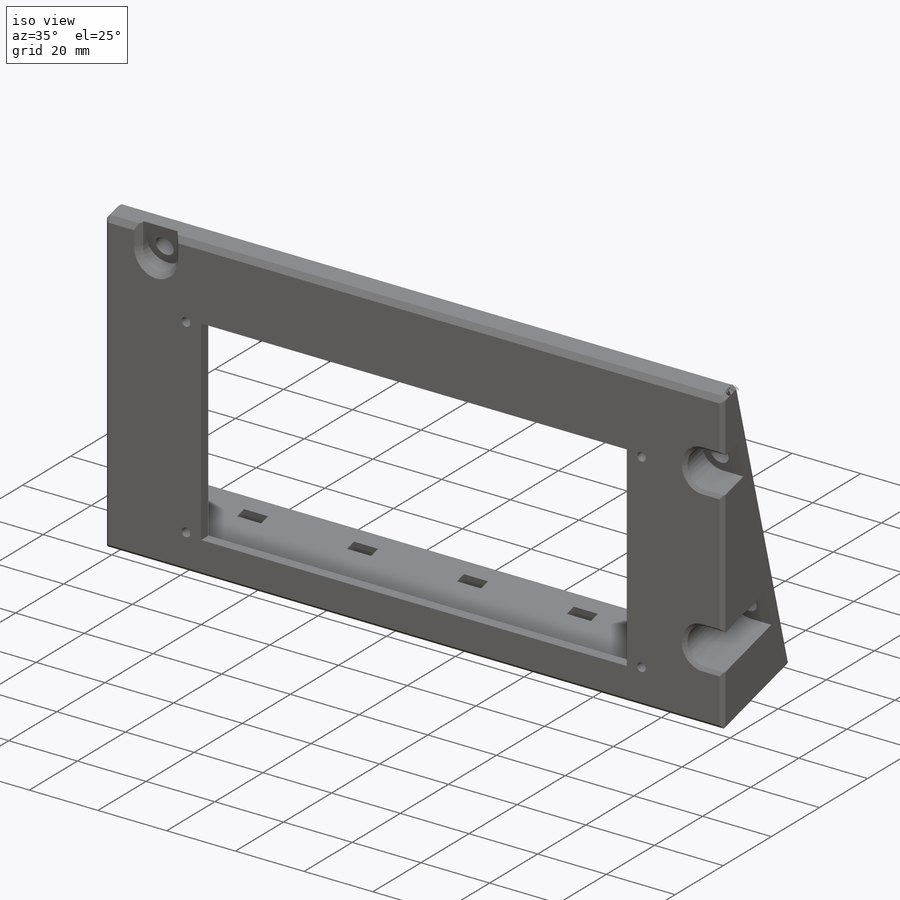
[diagram: iso view]
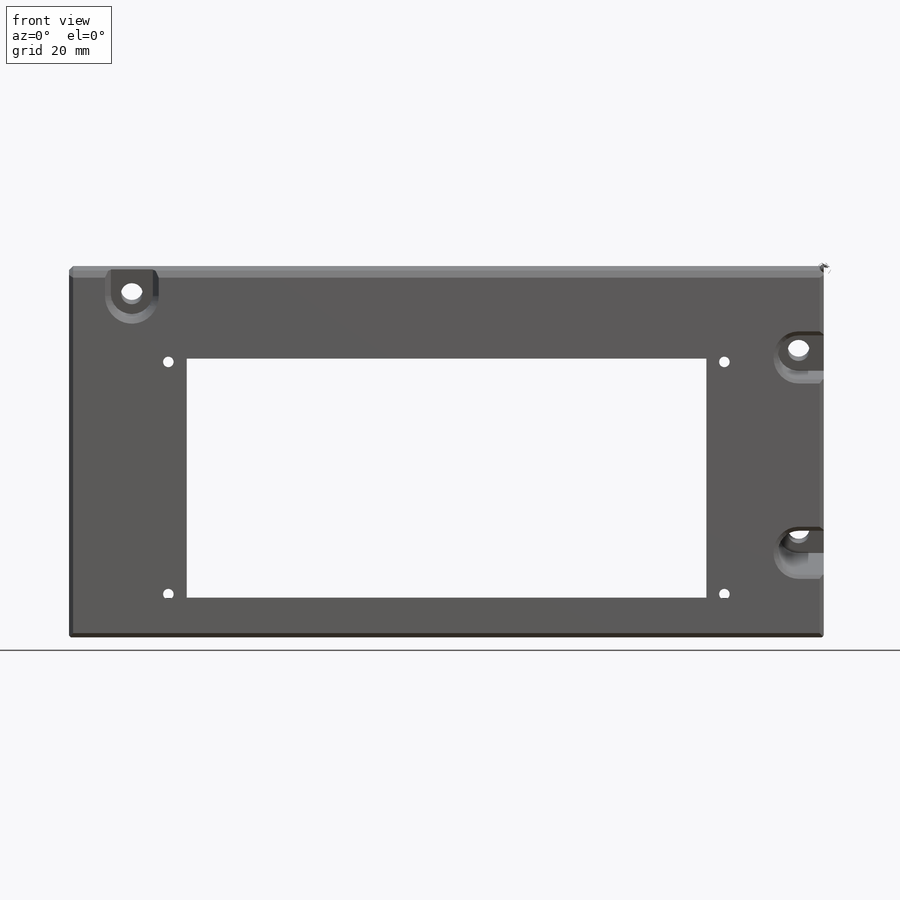
[diagram: front view]
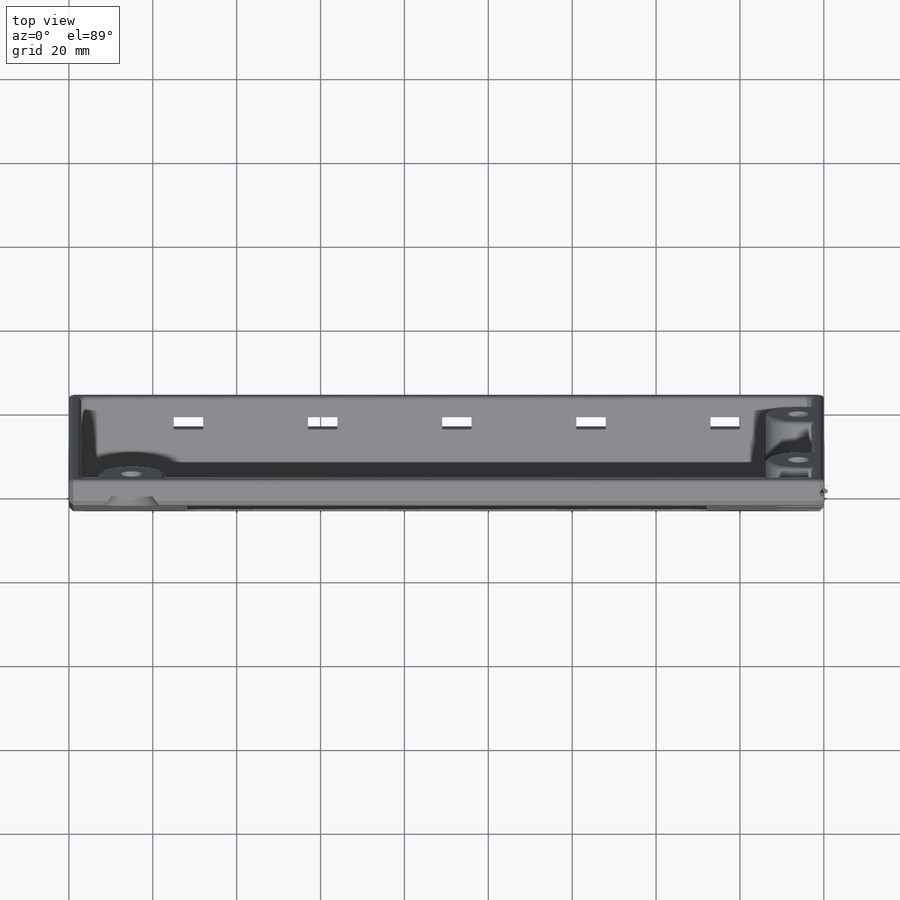
[diagram: top view]
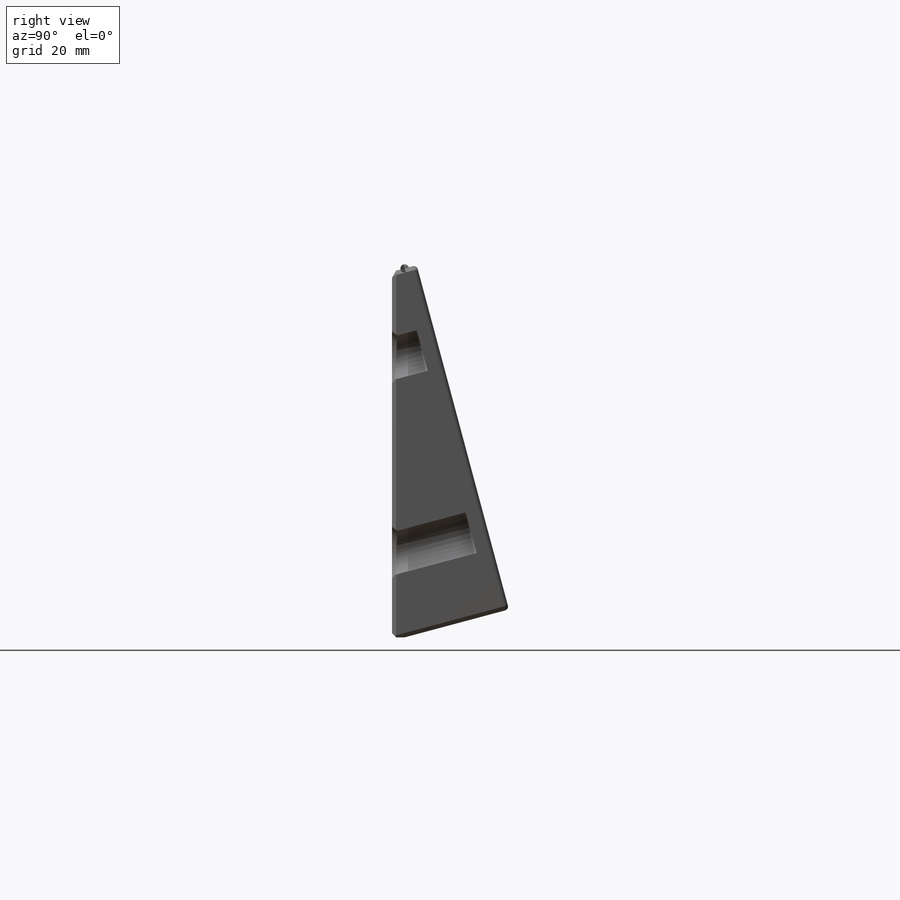
[diagram: right view]
SOLIDWORKS PART (.sldprt)
format: sldprt  version: not decoded by parser v0  size: 819,712 bytes
history: native  units: mm
features: sketch x13, extrude x7, cut_extrude x6, plane x5, fillet x3, material x1, mirror x1, chamfer x1 (+13 scaffold rows collapsed)
feature tree (50):
  scaffold x13  (default folders/planes/origin — collapsed)
  material  "ABS"
  sketch  "Sketch1"  dims[c1.D1=180.0mm c1.D2=90.0mm c2.D1=180.0mm c2.D2=88.0mm]
  extrude  "Boss-Extrude1"  Depth=3mm
  plane  "Plane1"
  plane  "Plane3"
  sketch  "Sketch3"  dims[c1.D1=~20.757303mm c2.D1=90.0deg c2.D2=~87.423518mm c3.D2=15.0deg c3.D3=3.0mm c3.D1=~0.776457mm c4.D1=90.0deg c4.D2=3.0mm c5.D2=105.0deg c5.D4=25.0mm c6.D4=90.0deg]
  extrude  "Boss-Extrude2"  Depth=3mm
  mirror  "Mirror1"
  sketch  "Sketch4"  dims[D1=3.0mm]
  extrude  "Boss-Extrude3"  [1 undecoded]
  sketch  "Sketch5"
  cut_extrude  "Cut-Extrude2"  [1 undecoded]
  sketch  "Sketch6"  dims[D1=3.0mm]
  extrude  "Boss-Extrude4"  [1 undecoded]
  sketch  "Sketch7"  dims[c1.D1=16.0mm c1.D3=16.0mm c1.D5=8.0mm c1.D6=8.0mm c1.D7=8.0mm c1.D2=20.0mm c2.D3=20.0mm c2.D4=15.0mm c2.D5=3.0mm c2.D6=3.0mm c2.D7=3.0mm]
  extrude  "Boss-Extrude5"  [1 undecoded]
  plane  "Plane2"  Offset=4mm
  sketch  "Sketch8"  dims[D1=10.0mm]
  cut_extrude  "Cut-Extrude3"  [1 undecoded]
  sketch  "Sketch14"  dims[c1.D2=8.0mm c1.D1=12.0mm c2.D2=12.0mm]
  extrude  "Boss-Extrude6"  Depth=20mm
  chamfer  "Chamfer1"  Distance=1mm Angle=45deg
  fillet  "Fillet1"  Radius=1mm
  sketch  "Sketch9"  dims[D1=5.2mm]
  cut_extrude  "Cut-Extrude5"  [1 undecoded]
  sketch  "Sketch10"  dims[c1.D1=20.0mm c1.D2=5.0mm c1.D3=7.0mm c1.D4=3.0mm c2.D2=5.0mm c2.D1=10.0mm c2.D6=10.0mm c2.D5=5.0]
  cut_extrude  "Cut-Extrude6"  [1 undecoded]
  sketch  "Sketch13"  dims[D1=2.4mm D2=1.0mm D3=1.0mm D4=1.0mm D5=1.0mm]
  cut_extrude  "Cut-Extrude7"  [1 undecoded]
  sketch  "Sketch12"
  extrude  "Diaphragm_for_printing"  Depth=0.6mm
  fillet  "Axis2"  [1 undecoded]
  plane  "Plane4"
  fillet  "Axis3"  [1 undecoded]
  plane  "Plane5"
  sketch  "Sketch15"  dims[c1.D1=5.1mm c1.D2=5.1mm c1.D3=5.1mm c2.D2=~12.396315mm c2.D3=10.0mm c3.D2=58.0mm]
  cut_extrude  "Cut-Extrude8"  [1 undecoded]
decode coverage: 17 of 31 modeling features carry decoded parameters
note: ~ marks probable driven/reference dimensions
note: 11 parameter values undecoded
summary: no parameter record found for 11 features
note: suppression state not decoded; provenance and decode notes live in map.json
